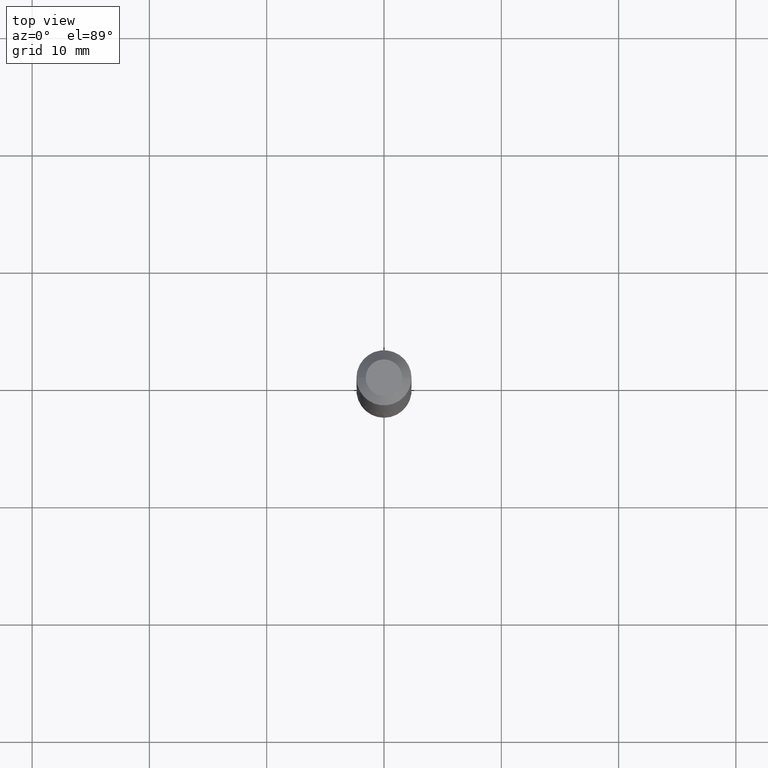
[diagram: clean part render]
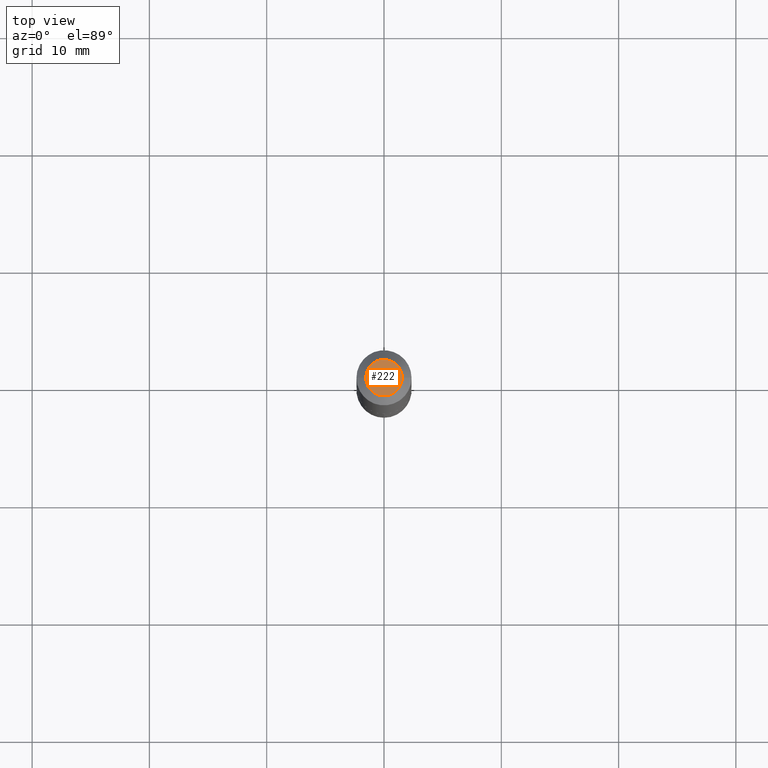
[diagram: same view with one face highlighted and labeled with its STEP entity id]
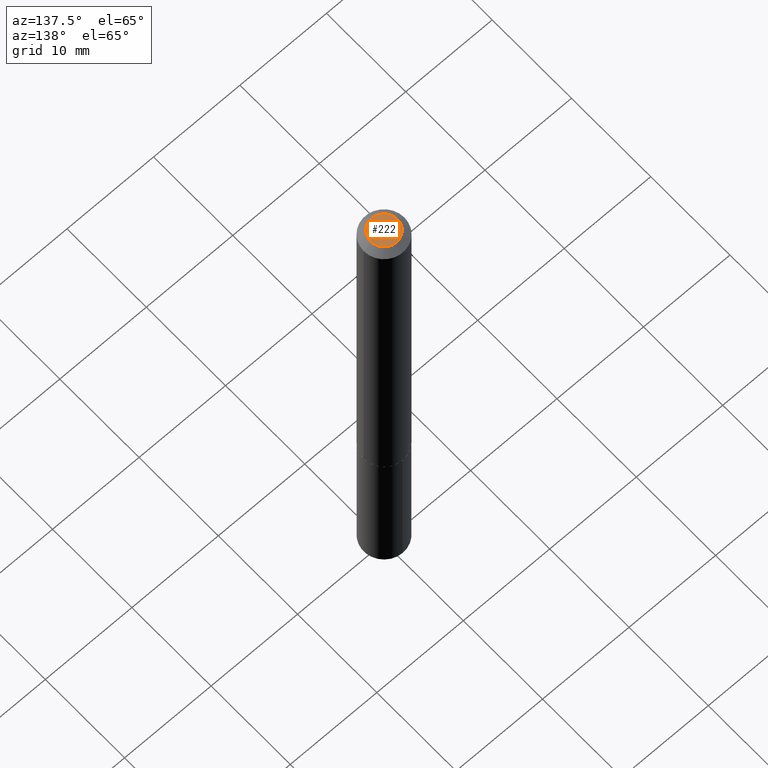
[diagram: same view with one face highlighted and labeled with its STEP entity id]
A machine part, top view. The second image highlights one B-rep face of the part: STEP entity #222.
A second angle (auxiliary view) of the same face is appended — the face is thin or edge-on in the first view.
In plain terms, the highlighted planar face has unit normal (0, -0, -1).
Its self-contained STEP definition (entity closure, byte-faithful):
#6 = CIRCLE ( 'NONE', #215, 0.06125000000000000583 ) ;
#56 = VERTEX_POINT ( 'NONE', #177 ) ;
#97 = EDGE_CURVE ( 'NONE', #56, #100, #6, .T. ) ;
#100 = VERTEX_POINT ( 'NONE', #112 ) ;
#109 = DIRECTION ( 'NONE',  ( -1.000000000000000000, 6.982962677686265922E-15, -4.876176775795935793E-29 ) ) ;
#112 = CARTESIAN_POINT ( 'NONE',  ( -0.06125000000000000583, 4.822608599277072228E-16, 2.388061258305517296E-19 ) ) ;
#117 = AXIS2_PLACEMENT_3D ( 'NONE', #225, #203, #109 ) ;
#134 = DIRECTION ( 'NONE',  ( 1.000000000000000000, -6.982962677686267499E-15, 4.876190086226892022E-29 ) ) ;
#164 = PLANE ( 'NONE',  #117 ) ;
#171 = EDGE_CURVE ( 'NONE', #100, #56, #302, .T. ) ;
#177 = CARTESIAN_POINT ( 'NONE',  ( 0.06125000000000000583, -5.819551794981109879E-16, 2.388061258372631621E-19 ) ) ;
#183 = AXIS2_PLACEMENT_3D ( 'NONE', #221, #232, #134 ) ;
#198 = ORIENTED_EDGE ( 'NONE', *, *, #97, .T. ) ;
#201 = DIRECTION ( 'NONE',  ( 1.000000000000000000, -6.982962677686267499E-15, 4.876190086226892022E-29 ) ) ;
#203 = DIRECTION ( 'NONE',  ( 2.438088387897960049E-29, -3.491481338843145188E-15, -1.000000000000000000 ) ) ;
#215 = AXIS2_PLACEMENT_3D ( 'NONE', #252, #249, #201 ) ;
#221 = CARTESIAN_POINT ( 'NONE',  ( -5.839929314523175409E-48, 8.337871319499082469E-34, 2.388061258337334140E-19 ) ) ;
#222 = ADVANCED_FACE ( 'NONE', ( #380 ), #164, .F. ) ;
#223 = EDGE_LOOP ( 'NONE', ( #288, #198 ) ) ;
#225 = CARTESIAN_POINT ( 'NONE',  ( -2.919964657261587705E-48, 4.168935659749541235E-34, 1.194030629168667070E-19 ) ) ;
#232 = DIRECTION ( 'NONE',  ( -2.445468806185136597E-29, 3.491481338843145583E-15, 1.000000000000000000 ) ) ;
#249 = DIRECTION ( 'NONE',  ( -2.445468806185136597E-29, 3.491481338843145583E-15, 1.000000000000000000 ) ) ;
#252 = CARTESIAN_POINT ( 'NONE',  ( -5.839929314523175409E-48, 8.337871319499082469E-34, 2.388061258337334140E-19 ) ) ;
#288 = ORIENTED_EDGE ( 'NONE', *, *, #171, .T. ) ;
#302 = CIRCLE ( 'NONE', #183, 0.06125000000000000583 ) ;
#380 = FACE_OUTER_BOUND ( 'NONE', #223, .T. ) ;